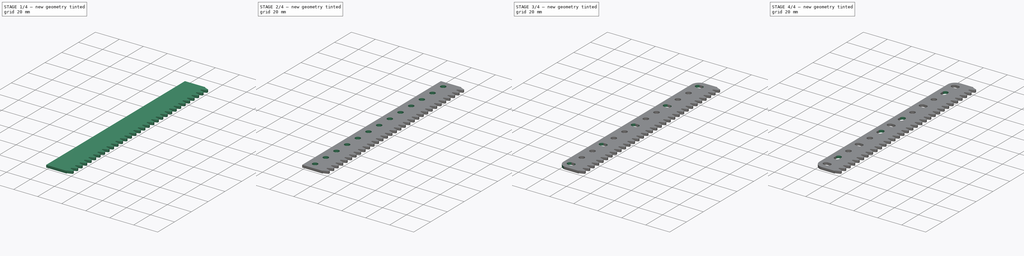
[diagram: build sequence overview — one tinted view per stage of 4, left to right]
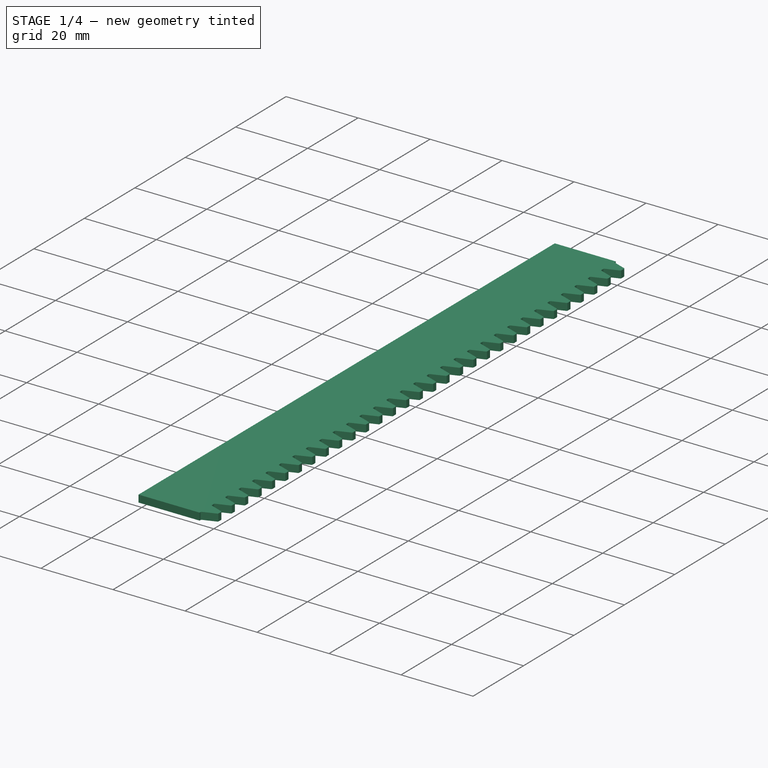
[diagram: stage 1 of 4 — iso view after this stage's code; geometry added in this stage tinted green]
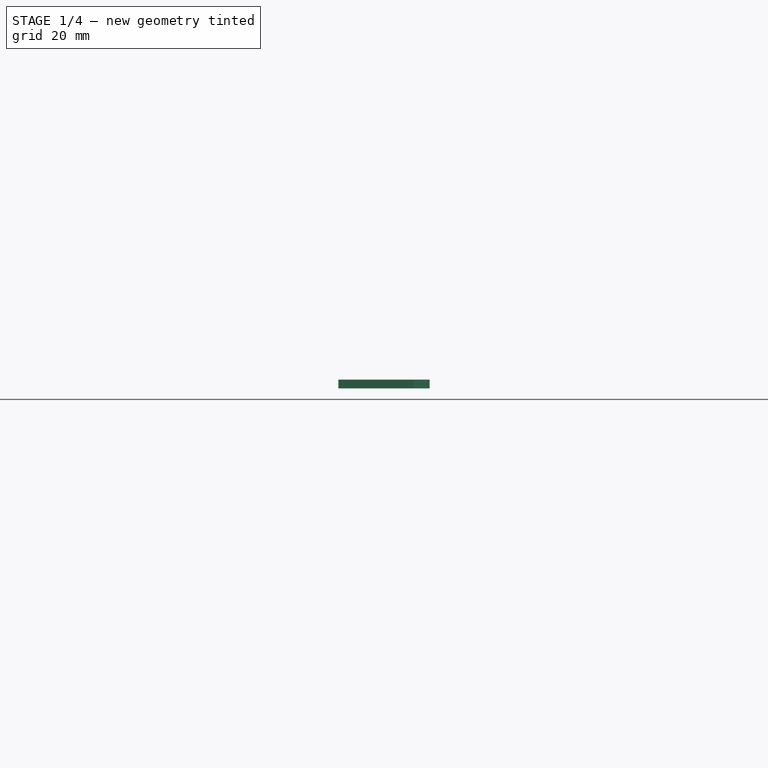
[diagram: stage 1 of 4 — front view after this stage's code; geometry added in this stage tinted green]
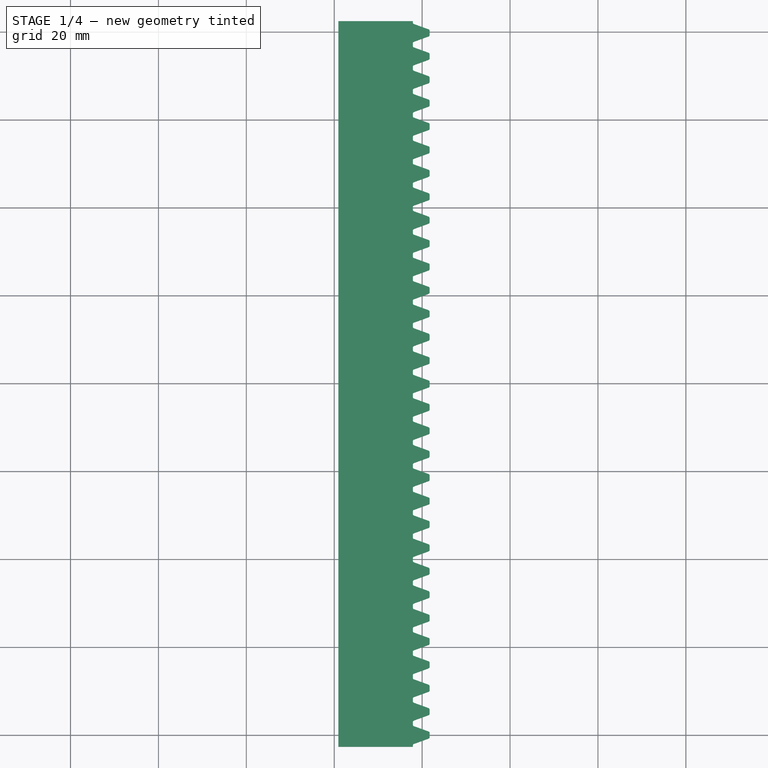
[diagram: stage 1 of 4 — top view after this stage's code; geometry added in this stage tinted green]
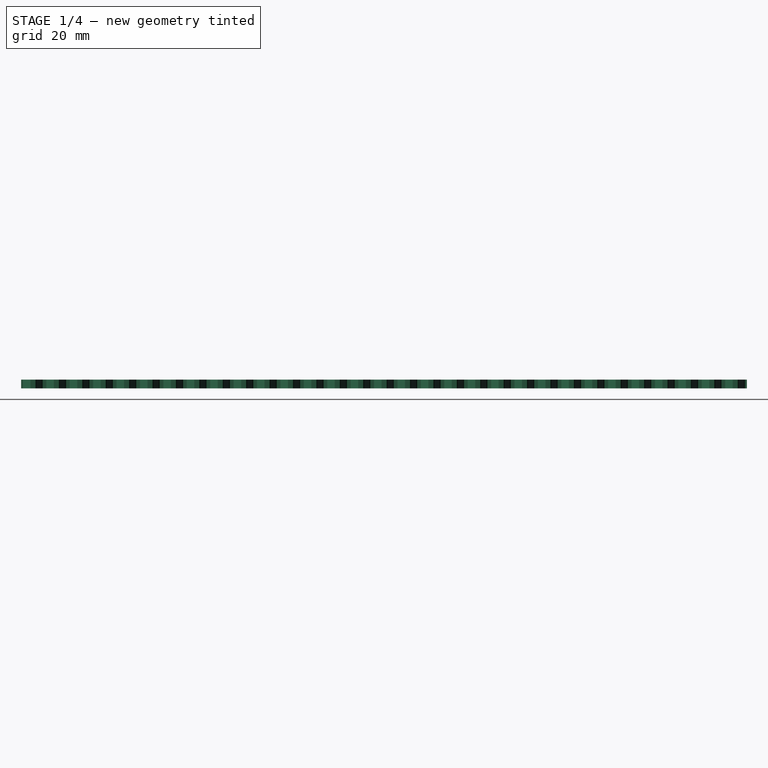
[diagram: stage 1 of 4 — right view after this stage's code; geometry added in this stage tinted green]
FCSTD DOCUMENT  (FreeCAD 1.0R39109 (Git))
Label: 167e_large_toothed_rack_13_holes
License: All rights reserved
LicenseURL: http://en.wikipedia.org/wiki/All_rights_reserved
objects: PartDesign::LinearPattern×4, Sketcher::SketchObject×3, PartDesign::Pocket×3, Part::FeaturePython×1, PartDesign::FeatureBase×1, PartDesign::Fillet×1, PartDesign::MultiTransform×1, PartDesign::Body×1
note: 32 computed .brp shape members not serialized (recipe doc carries the construction recipe); baked Part::Feature solids carry a one-line shape summary decoded from their .brp

FEATURE [Part::FeaturePython] InvoluteRack  # WARN: FeaturePython — macro-defined, semantics opaque (R4)
  AttacherType = Attacher::AttachEngine3D
  add_endings = true
  clearance = 0.25
  double_helix = false
  head = 0
  head_fillet = 0.2
  height = 2
  helix_angle = 0
  module = 1.69526
  num_teeth = 31
  pressure_angle = 20
  properties_from_tool = false
  root_fillet = 0.2
  simplified = false
  thickness = 16.9309
  transverse_pitch = 5.32581
  version = 1.3.0
  expr: module = 6.5 " / num_teeth / pi
  expr: thickness = 0.75 " - (1 + clearance) * module
FEATURE [PartDesign::FeatureBase] BaseFeature
  BaseFeature = -> InvoluteRack
  Suppressed = false
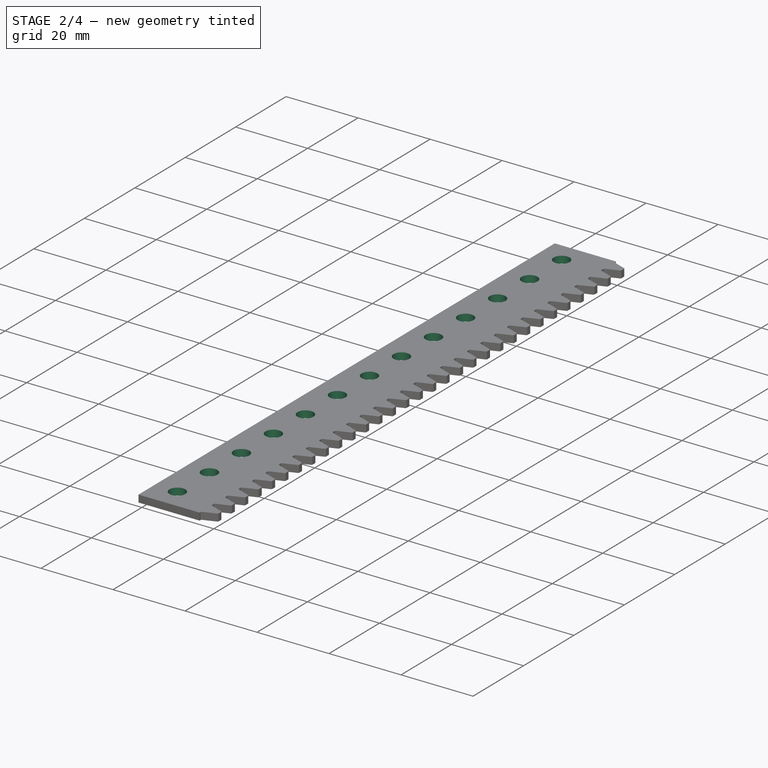
[diagram: stage 2 of 4 — iso view after this stage's code; geometry added in this stage tinted green]
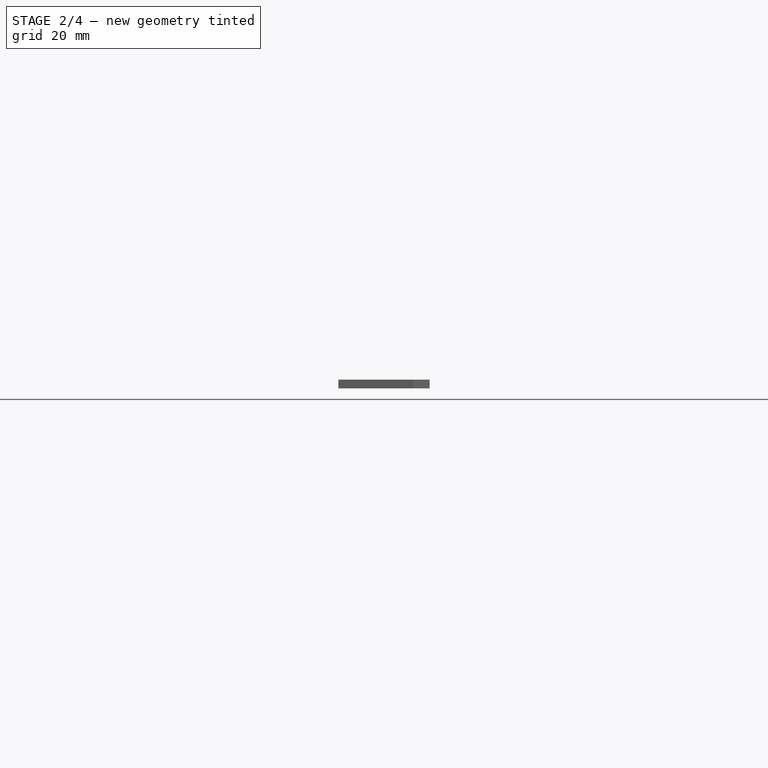
[diagram: stage 2 of 4 — front view after this stage's code; geometry added in this stage tinted green]
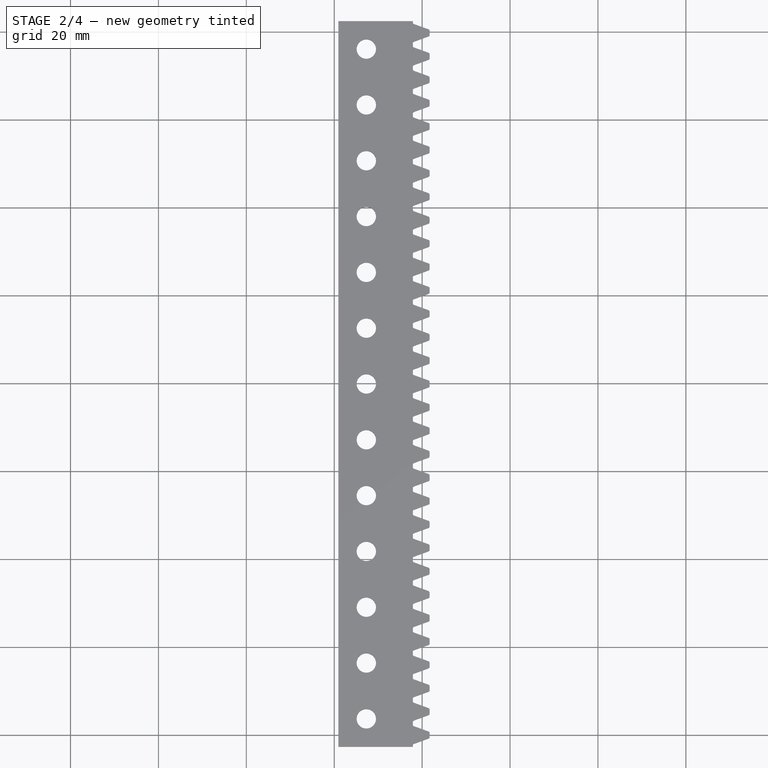
[diagram: stage 2 of 4 — top view after this stage's code; geometry added in this stage tinted green]
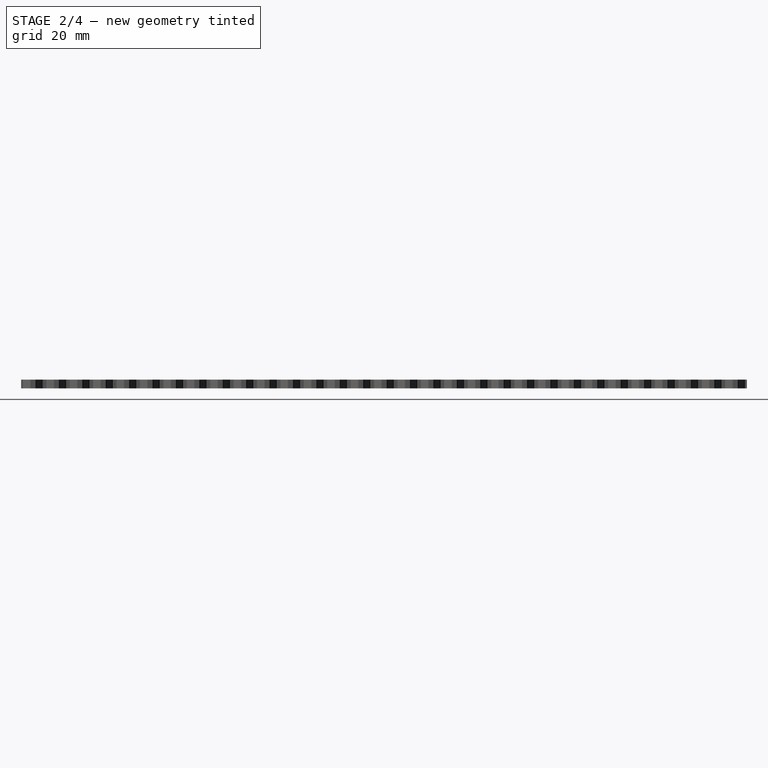
[diagram: stage 2 of 4 — right view after this stage's code; geometry added in this stage tinted green]
FEATURE [Sketcher::SketchObject] Sketch
  ArcFitTolerance = 1e-06
  AttachmentSupport = -> [BaseFeature]
  FullyConstrained = true
  MakeInternals = false
  MapMode = 5
  Placement = pos=(0,0,2) rot=(0,0,1;0rad)
  expr: Constraints[1] = 0.25 " - InvoluteRack.transverse_pitch / 2
  sketch-geometry (1):
    g0: Circle CenterX=-12.7 CenterY=3.6871 CenterZ=0 NormalX=0 NormalY=0 NormalZ=1 AngleXU=0 Radius=2.2
  constraints (3):
    c: Diameter(g0) = 4.4
    c: DistanceY(g-1,g0) = 3.6871
    c: DistanceX(g0,g-1) = 12.7
FEATURE [PartDesign::Pocket] Pocket
  BaseFeature = -> BaseFeature
  Direction = (0,0,-1)
  Length = 5
  Length2 = 5
  Profile = -> Sketch
  ReferenceAxis = -> Sketch [N_Axis]
  Suppressed = false
  Type = 1
FEATURE [PartDesign::LinearPattern] LinearPattern
  BaseFeature = -> Pocket
  Direction = -> Sketch [V_Axis]
  Length = 152.4
  Mode = 1
  Occurrences = 13
  Offset = 12.7
  Originals = -> [Pocket]
  Suppressed = false
  TransformMode = 0
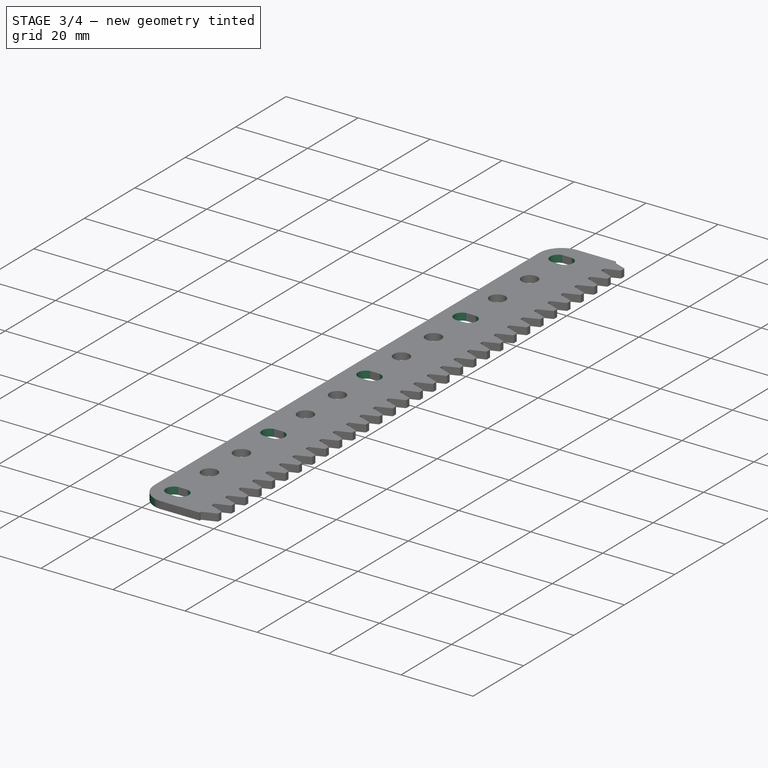
[diagram: stage 3 of 4 — iso view after this stage's code; geometry added in this stage tinted green]
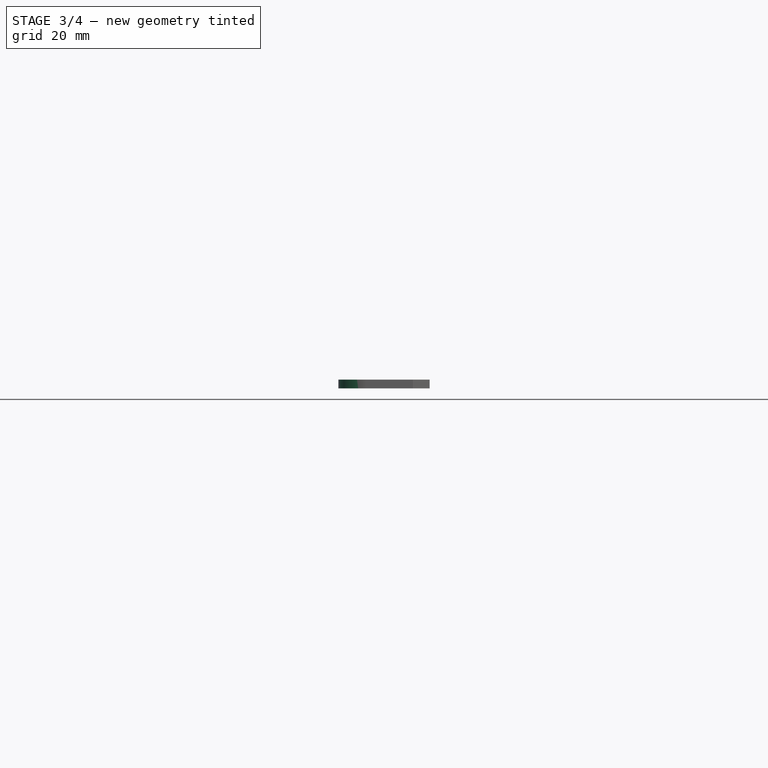
[diagram: stage 3 of 4 — front view after this stage's code; geometry added in this stage tinted green]
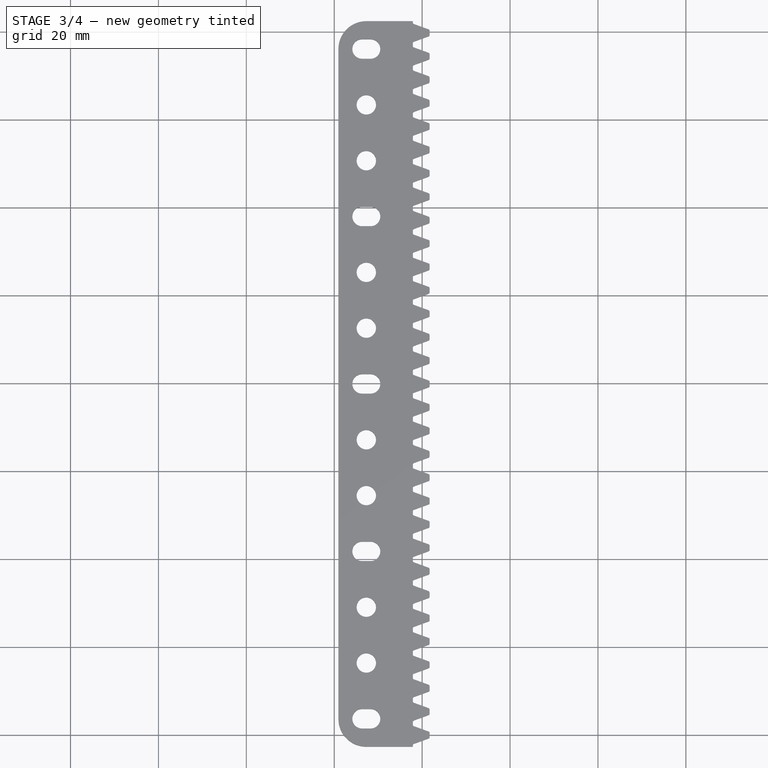
[diagram: stage 3 of 4 — top view after this stage's code; geometry added in this stage tinted green]
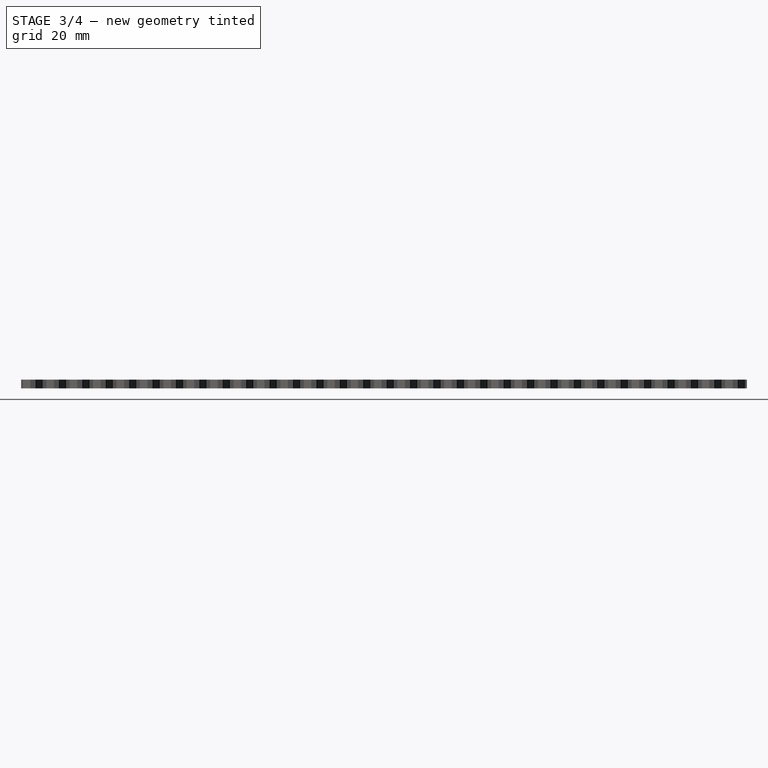
[diagram: stage 3 of 4 — right view after this stage's code; geometry added in this stage tinted green]
FEATURE [PartDesign::Fillet] Fillet
  Base = -> LinearPattern [Edge8,Edge2]
  BaseFeature = -> LinearPattern
  Radius = 6.35
  SupportTransform = false
  Suppressed = false
  UseAllEdges = false
FEATURE [Sketcher::SketchObject] Sketch001
  ArcFitTolerance = 1e-06
  AttachmentSupport = -> [Fillet]
  FullyConstrained = true
  MakeInternals = false
  MapMode = 5
  Placement = pos=(0,0,2) rot=(0,0,1;0rad)
  expr: .Constraints.length = 0.25 " - .Constraints.radius * 2
  expr: .Constraints.x = 0.5 " - .Constraints.length / 2
  expr: .Constraints.y = 0.25 " - InvoluteRack.transverse_pitch / 2
  sketch-geometry (4):
    g0: ArcOfCircle CenterX=-13.675 CenterY=3.6871 CenterZ=0 NormalX=0 NormalY=0 NormalZ=1 AngleXU=0 Radius=2.2 StartAngle=1.5708 EndAngle=4.71239
    g1: ArcOfCircle CenterX=-11.725 CenterY=3.6871 CenterZ=0 NormalX=0 NormalY=0 NormalZ=1 AngleXU=0 Radius=2.2 StartAngle=4.71239 EndAngle=7.85398
    g2: LineSegment StartX=-13.675 StartY=5.8871 StartZ=0 EndX=-11.725 EndY=5.8871 EndZ=0
    g3: LineSegment StartX=-13.675 StartY=1.4871 StartZ=0 EndX=-11.725 EndY=1.4871 EndZ=0
  constraints (10):
    c: Tangent(g0,g2) = 1.5708
    c: Tangent(g0,g3) = -1.5708
    c: Tangent(g1,g2) = 1.5708
    c: Tangent(g1,g3) = -1.5708
    c: Equal(g0,g1)
    c: Horizontal(g3)
    c: Distance(g0,g1) = 1.95  'length'
    c: Radius(g0) = 2.2  'radius'
    c: DistanceX(g1,g-1) = 11.725  'x'
    c: DistanceY(g-1,g1) = 3.6871  'y'
FEATURE [PartDesign::Pocket] Pocket001
  BaseFeature = -> Fillet
  Direction = (0,0,-1)
  Length = 5
  Length2 = 5
  Profile = -> Sketch001
  ReferenceAxis = -> Sketch001 [N_Axis]
  Suppressed = false
  Type = 1
FEATURE [PartDesign::LinearPattern] LinearPattern001
  BaseFeature = -> Pocket001
  Direction = -> Y_Axis
  Length = 152.4
  Mode = 1
  Occurrences = 5
  Offset = 38.1
  Originals = -> [Pocket001]
  Suppressed = false
  TransformMode = 0
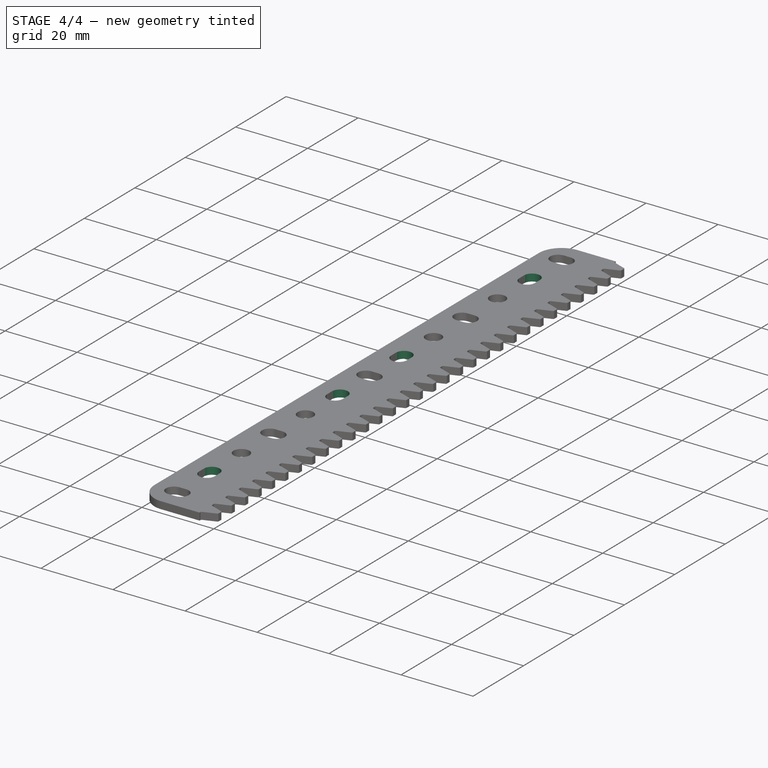
[diagram: stage 4 of 4 — iso view after this stage's code; geometry added in this stage tinted green]
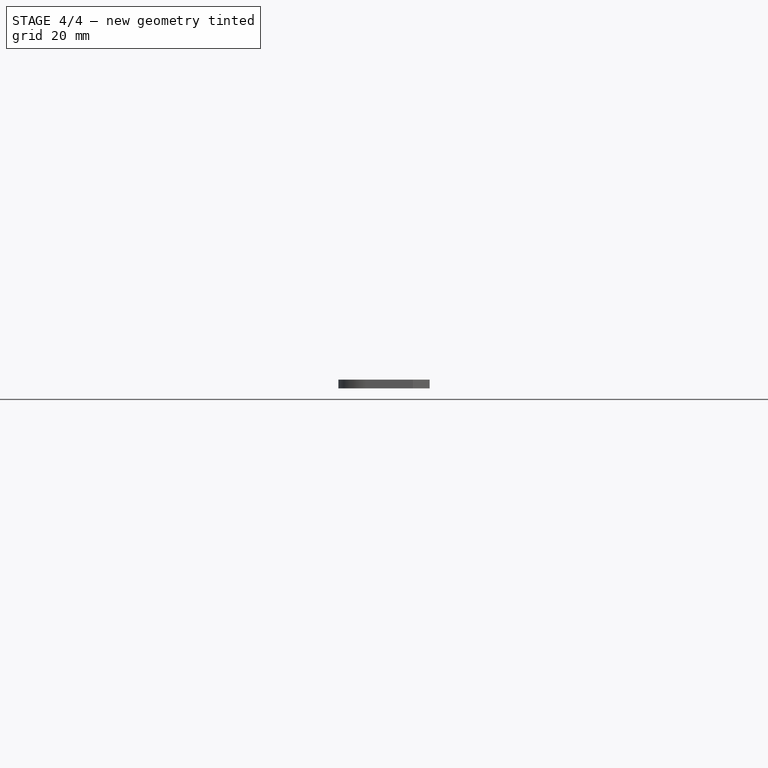
[diagram: stage 4 of 4 — front view after this stage's code; geometry added in this stage tinted green]
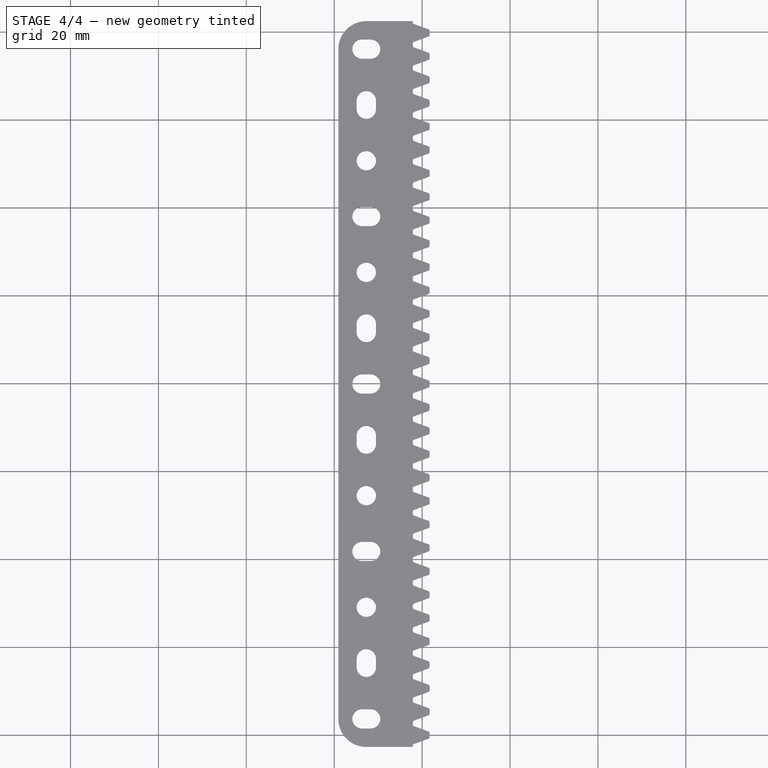
[diagram: stage 4 of 4 — top view after this stage's code; geometry added in this stage tinted green]
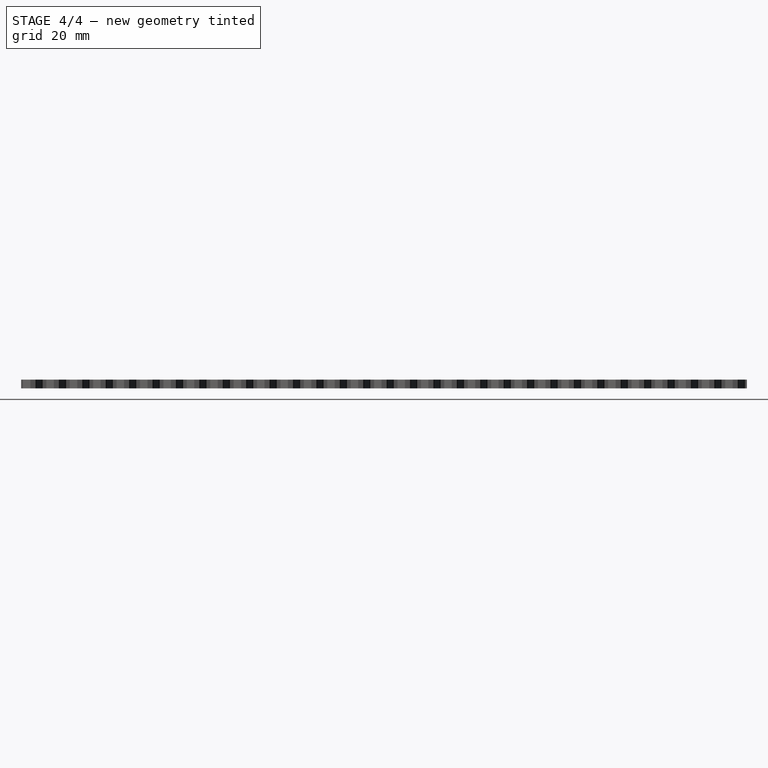
[diagram: stage 4 of 4 — right view after this stage's code; geometry added in this stage tinted green]
FEATURE [Sketcher::SketchObject] Sketch002
  ArcFitTolerance = 1e-06
  AttachmentSupport = -> [LinearPattern001]
  FullyConstrained = true
  MakeInternals = false
  MapMode = 5
  Placement = pos=(0,0,2) rot=(0,0,1;0rad)
  expr: .Constraints.length = 0.25 " - .Constraints.radius * 2
  expr: .Constraints.y = 0.75 " - .Constraints.length / 2 - InvoluteRack.transverse_pitch / 2
  sketch-geometry (4):
    g0: ArcOfCircle CenterX=-12.7 CenterY=15.4121 CenterZ=0 NormalX=0 NormalY=0 NormalZ=1 AngleXU=0 Radius=2.2 StartAngle=3.14159 EndAngle=6.28319
    g1: ArcOfCircle CenterX=-12.7 CenterY=17.3621 CenterZ=0 NormalX=0 NormalY=0 NormalZ=1 AngleXU=0 Radius=2.2 StartAngle=4e-16 EndAngle=3.14159
    g2: LineSegment StartX=-14.9 StartY=15.4121 StartZ=0 EndX=-14.9 EndY=17.3621 EndZ=0
    g3: LineSegment StartX=-10.5 StartY=15.4121 StartZ=0 EndX=-10.5 EndY=17.3621 EndZ=0
  constraints (10):
    c: Tangent(g0,g2) = 1.5708
    c: Tangent(g0,g3) = -1.5708
    c: Tangent(g1,g2) = 1.5708
    c: Tangent(g1,g3) = -1.5708
    c: Equal(g0,g1)
    c: Vertical(g3)
    c: Distance(g0,g1) = 1.95  'length'
    c: Radius(g0) = 2.2  'radius'
    c: DistanceX(g0,g-1) = 12.7  'x'
    c: DistanceY(g-1,g0) = 15.4121  'y'
FEATURE [PartDesign::Pocket] Pocket002
  BaseFeature = -> LinearPattern001
  Direction = (0,0,-1)
  Length = 5
  Length2 = 5
  Profile = -> Sketch002
  ReferenceAxis = -> Sketch002 [N_Axis]
  Suppressed = false
  Type = 1
FEATURE [PartDesign::LinearPattern] LinearPattern002
  Direction = -> Y_Axis
  Length = 50.8
  Mode = 1
  Occurrences = 2
  Offset = 50.8
  Suppressed = false
  TransformMode = 0
FEATURE [PartDesign::LinearPattern] LinearPattern003
  Direction = -> Y_Axis
  Length = 76.2
  Mode = 1
  Occurrences = 2
  Offset = 76.2
  Suppressed = false
  TransformMode = 0
FEATURE [PartDesign::MultiTransform] MultiTransform
  BaseFeature = -> Pocket002
  Originals = -> [Pocket002]
  Suppressed = false
  TransformMode = 0
  Transformations = -> [LinearPattern002,LinearPattern003]
FEATURE [PartDesign::Body] Body
  AllowCompound = false
  BaseFeature = -> InvoluteRack
  Group = -> [BaseFeature,Sketch,Pocket,LinearPattern,Fillet,Sketch001,Pocket001,LinearPattern001,Sketch002,Pocket002,MultiTransform,LinearPattern002,LinearPattern003]
  Origin = -> Origin
  Tip = -> MultiTransform
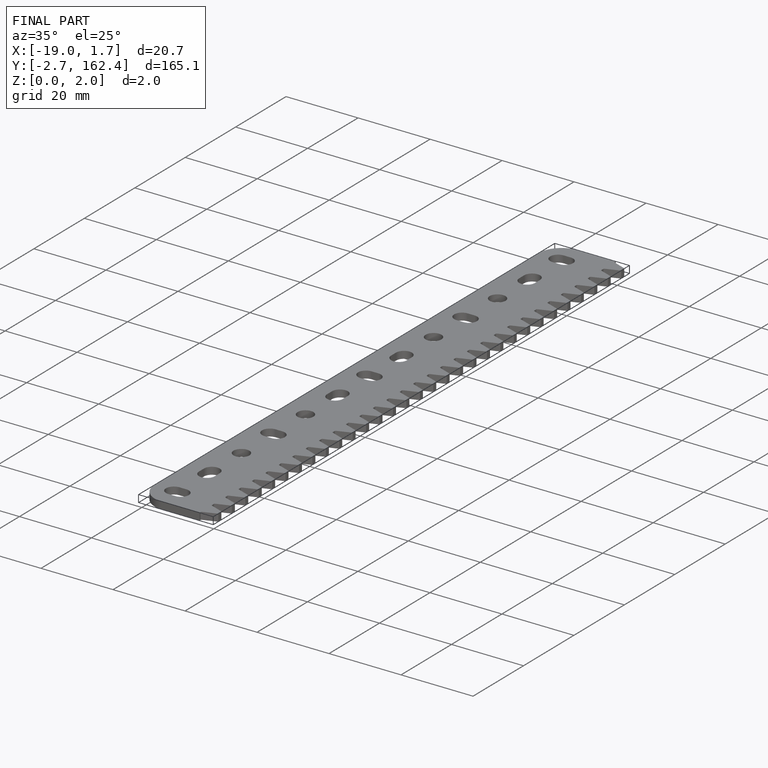
[diagram: finished part — iso view with bounding-box wireframe]
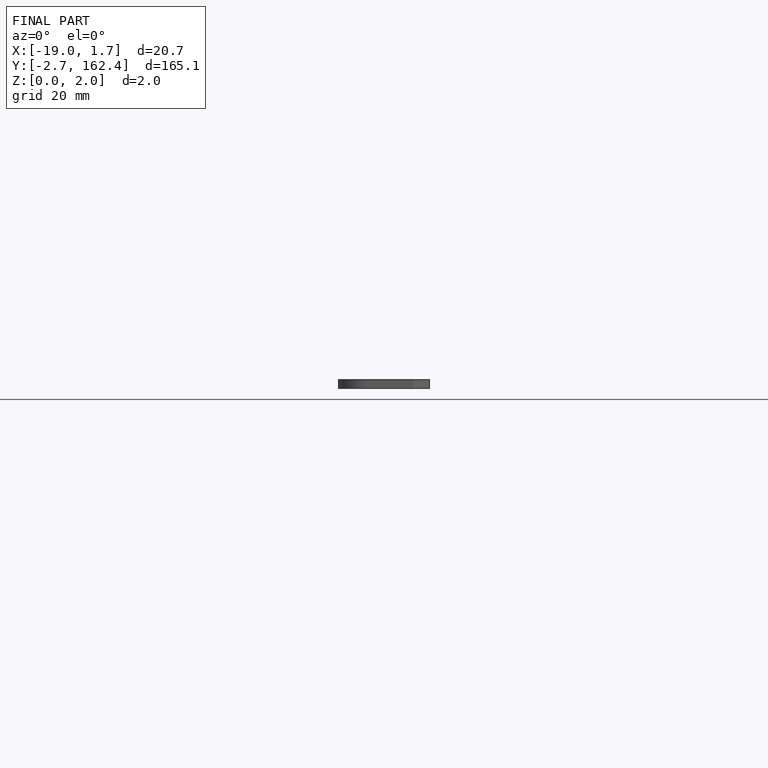
[diagram: finished part — front view with bounding-box wireframe]
